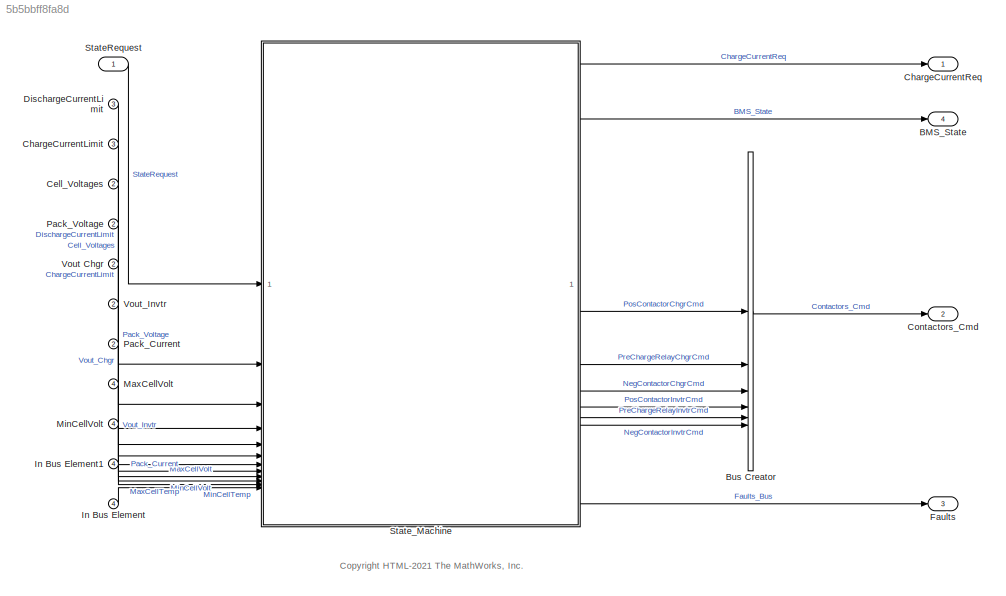
MODEL slx_5b5bbff8fa8d
KIND model
CONFIG AbsTol = auto
CONFIG EnableMultiTasking = off
CONFIG FixedStep = auto
CONFIG MaxStep = auto
CONFIG MinStep = auto
CONFIG PreLoadFcn = clearEnums;
CONFIG RelTol = 1e-3
CONFIG SampleTimeConstraint = Unconstrained
CONFIG SolverName = FixedStepDiscrete
CONFIG StartTime = 0.0
CONFIG StopTime = 10000
WORKSPACE source: mxarray member
WORKSPACE Active_Scenario_Index = 1
WORKSPACE BattTempInit = 25
WORKSPACE Battery: object (value not decoded)
WORKSPACE CV_Gain = 0.20000000298
WORKSPACE CellType = 1
WORKSPACE HighTempDchrgCurrentLim: Simulink.Signal (value not decoded)
WORKSPACE HighTempLimit = 50
WORKSPACE I_cc = 30
WORKSPACE LowTempDchrgCurrentLim: Simulink.Signal (value not decoded)
WORKSPACE LowTempLimit = 5
WORKSPACE MaxCellVoltThrsld = 4.19999980927
WORKSPACE MaxChrgCurrLim: Simulink.Parameter (value not decoded)
WORKSPACE MaxDchrgCurrLim: Simulink.Parameter (value not decoded)
WORKSPACE MinCellVoltDchrgCurrentLim: Simulink.Signal (value not decoded)
WORKSPACE MinCellVoltDchrgCurrentLimTable: Simulink.LookupTable (value not decoded)
WORKSPACE Np_Module = 31
WORKSPACE Ns_Module = 24
WORKSPACE NumModules = 4
WORKSPACE OverCellVoltageLimit = 4.19999980927
WORKSPACE Sig: Simulink.Signal (value not decoded)
WORKSPACE SnsrFltThld = 0.252
WORKSPACE TestCase = 1
WORKSPACE UnderCellVoltageLimit = 2.5
WORKSPACE contactorTime = 200
WORKSPACE currentFactor = 10
WORKSPACE noCurrent = 0
WORKSPACE timeoutContactor = 1
WORKSPACE timeoutCurrent = 1
WORKSPACE ts = 0.1
WORKSPACE vRatio = 0.949999988079
WORKSPACE voltThreshold = 4.09999990463
BLOCK [Outport] BMS_State
  OutDataTypeStr = Enum: BMS_State_Enum
  Port = 4
  PortDimensions = 1
  SampleTime = [0.10000000000000001,0]
  SamplingMode = Sample based
  SignalType = real
  VectorParamsAs1DForOutWhenUnconnected = off
BLOCK [BusCreator] Bus Creator
  DisplayOption = bar
  InheritFromInputs = off
  Inputs = 6
  NonVirtualBus = on
  OutDataTypeStr = Bus: Contactors_Cmd
BLOCK [Inport] Cell_Voltages
  Port = 2
BLOCK [Inport] ChargeCurrentLimit
  Port = 3
BLOCK [Outport] ChargeCurrentReq
  OutDataTypeStr = single
  OutMax = 100
  OutMin = -100
  PortDimensions = 1
  SampleTime = [0.10000000000000001,0]
  SamplingMode = Sample based
  SignalType = real
  VectorParamsAs1DForOutWhenUnconnected = off
BLOCK [Outport] Contactors_Cmd
  BusOutputAsStruct = on
  OutDataTypeStr = Bus: Contactors_Cmd
  Port = 2
BLOCK [Inport] DischargeCurrentLimit
  Port = 3
BLOCK [Outport] Faults
  BusOutputAsStruct = on
  OutDataTypeStr = Bus: Faults
  Port = 3
  VectorParamsAs1DForOutWhenUnconnected = off
BLOCK [Inport] In Bus Element
  Port = 4
BLOCK [Inport] In Bus Element1
  Port = 4
BLOCK [Inport] MaxCellVolt
  Port = 4
BLOCK [Inport] MinCellVolt
  Port = 4
BLOCK [Inport] Pack_Current
  Port = 2
BLOCK [Inport] Pack_Voltage
  Port = 2
BLOCK [Inport] StateRequest
  OutDataTypeStr = Enum: SRE
  PortDimensions = 1
  SampleTime = [0.10000000000000001,0]
  SamplingMode = Sample based
  SignalType = real
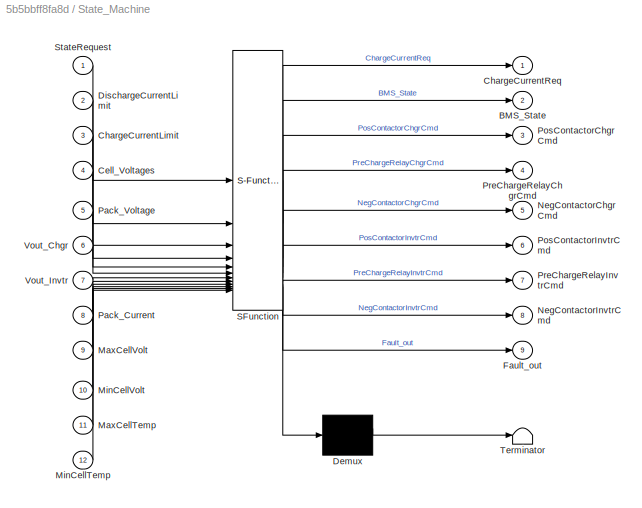
BLOCK [SubSystem] State_Machine
  ErrorFcn = Stateflow.Translate.translate
  PermitHierarchicalResolution = ExplicitOnly
  SFBlockType = Chart
  TreatAsAtomicUnit = on
  VariantControl = (default)
BLOCK [Demux] State_Machine/ Demux 
  Outputs = 1
BLOCK [S-Function] State_Machine/ SFunction 
  EnableBusSupport = off
  FunctionName = sf_sfun
  Parameters = CV_Gain,HighTempLimit,I_cc,LowTempLimit,MaxCellVoltThrsld,OverCellVoltageLimit,SnsrFltThld,UnderCellVoltageLimit,contactorTime,currentFactor,noCurrent,timeoutContactor,timeoutCurrent,vRatio,voltThreshold
  PortCounts = [12 10]
  SFcnIsStateOwnerBlock = off
  SFunctionDeploymentMode = off
  Tag = Stateflow S-Function 2
BLOCK [Terminator] State_Machine/ Terminator 
BLOCK [Outport] State_Machine/BMS_State
  Port = 2
  VectorParamsAs1DForOutWhenUnconnected = off
BLOCK [Inport] State_Machine/Cell_Voltages
  Port = 4
BLOCK [Inport] State_Machine/ChargeCurrentLimit
  Port = 3
BLOCK [Outport] State_Machine/ChargeCurrentReq
  VectorParamsAs1DForOutWhenUnconnected = off
BLOCK [Inport] State_Machine/DischargeCurrentLimit
  Port = 2
BLOCK [Outport] State_Machine/Fault_out
  Port = 9
  VectorParamsAs1DForOutWhenUnconnected = off
BLOCK [Inport] State_Machine/MaxCellTemp
  Port = 11
BLOCK [Inport] State_Machine/MaxCellVolt
  Port = 9
BLOCK [Inport] State_Machine/MinCellTemp
  Port = 12
BLOCK [Inport] State_Machine/MinCellVolt
  Port = 10
BLOCK [Outport] State_Machine/NegContactorChgrCmd
  Port = 5
  VectorParamsAs1DForOutWhenUnconnected = off
BLOCK [Outport] State_Machine/NegContactorInvtrCmd
  Port = 8
  VectorParamsAs1DForOutWhenUnconnected = off
BLOCK [Inport] State_Machine/Pack_Current
  Port = 8
BLOCK [Inport] State_Machine/Pack_Voltage
  Port = 5
BLOCK [Outport] State_Machine/PosContactorChgrCmd
  Port = 3
  VectorParamsAs1DForOutWhenUnconnected = off
BLOCK [Outport] State_Machine/PosContactorInvtrCmd
  Port = 6
  VectorParamsAs1DForOutWhenUnconnected = off
BLOCK [Outport] State_Machine/PreChargeRelayChgrCmd
  Port = 4
  VectorParamsAs1DForOutWhenUnconnected = off
BLOCK [Outport] State_Machine/PreChargeRelayInvtrCmd
  Port = 7
  VectorParamsAs1DForOutWhenUnconnected = off
BLOCK [Inport] State_Machine/StateRequest
BLOCK [Inport] State_Machine/Vout_Chgr
  Port = 6
BLOCK [Inport] State_Machine/Vout_Invtr
  Port = 7
BLOCK [Inport] Vout Chgr
  Port = 2
BLOCK [Inport] Vout_Invtr
  Port = 2
ANNOTATION (root): <copyright redacted>
LINE Bus Creator:1 -> Contactors_Cmd:1
LINE Cell_Voltages:1 -> State_Machine:4
LINE ChargeCurrentLimit:1 -> State_Machine:3
LINE DischargeCurrentLimit:1 -> State_Machine:2
LINE In Bus Element1:1 -> State_Machine:11
LINE In Bus Element:1 -> State_Machine:12
LINE MaxCellVolt:1 -> State_Machine:9
LINE MinCellVolt:1 -> State_Machine:10
LINE Pack_Current:1 -> State_Machine:8
LINE Pack_Voltage:1 -> State_Machine:5
LINE StateRequest:1 -> State_Machine:1
LINE State_Machine:1 -> ChargeCurrentReq:1
LINE State_Machine:2 -> BMS_State:1
LINE State_Machine:3 -> Bus Creator:1
LINE State_Machine:4 -> Bus Creator:2
LINE State_Machine:5 -> Bus Creator:3
LINE State_Machine:6 -> Bus Creator:4
LINE State_Machine:7 -> Bus Creator:5
LINE State_Machine:8 -> Bus Creator:6
LINE State_Machine:9 -> Faults:1
LINE Vout Chgr:1 -> State_Machine:6
LINE Vout_Invtr:1 -> State_Machine:7
CHART State_Machine states=46 transitions=56
  STATE_LABEL 'Fault Monitoring'
  STATE_LABEL 'MonitorCurrLim'
  STATE_LABEL 'Wait'
  STATE_LABEL 'NoCurrLimFault\n\n'
  STATE_LABEL 'OverCurrentFault\nen:\nFaultPresent = true;\nFault_out.OverCurrent=true;\n'
  STATE_LABEL '{FaultPresent = false;\nFault_out.OverCurrent=false;}'
  STATE_LABEL '[(Pack_Current < DischargeCurrentLimit) || ...\n(Pack_Current > ChargeCurrentLimit)]'
  STATE_LABEL '[(Pack_Current >= DischargeCurrentLimit) && ...\n(Pack_Current <= ChargeCurrentLimit)]'
  STATE_LABEL '[after(timeoutCurrent,sec)]'
  STATE_LABEL 'MonitorCellVoltage'
  STATE_LABEL 'OverVoltageFault\nen:\nFaultPresent = true;\nFault_out.OverVolt = true;'
  STATE_LABEL 'NoCellVoltFault\nen,du:\nDelta = abs(Pack_Voltage - sum(Cell_Voltages));\n'
  STATE_LABEL 'SensorFaut\nen:\nFaultPresent = true;\nFault_out.VoltSensor = true;'
  STATE_LABEL 'UnderVoltageFault\nen:\nFaultPresent = true;\nFault_out.UnderVolt = true;'
  STATE_LABEL '{FaultPresent = false;\nFault_out.OverVolt = false;\nFault_out.UnderVolt = false;\nFault_out.VoltSensor = false;\n}'
  STATE_LABEL '[MaxCellVolt >= ...\nOverCellVoltageLimit]'
  STATE_LABEL '[Delta >=...\n single(SnsrFltThld)]'
  STATE_LABEL '[MinCellVolt <=...\n UnderCellVoltageLimit]'
  STATE_LABEL 'MonitorCellTemp'
  STATE_LABEL 'HighTemperatureFault\nen:\nFaultPresent = true;\nFault_out.HighTemp = true;'
  STATE_LABEL 'NoCellTempFault\n'
  STATE_LABEL 'LowTemperatureFault\nen:\nFaultPresent = true;\nFault_out.LowTemp = true;'
  STATE_LABEL '{FaultPresent = false;\nFault_out.HighTemp = false;\nFault_out.LowTemp = false;}'
  STATE_LABEL '[MaxCellTemp >= HighTempLimit]'
  STATE_LABEL '[MinCellTemp <= LowTempLimit]'
  STATE_LABEL 'MonitorCurrLim'
  STATE_LABEL 'Wait'
  STATE_LABEL 'NoCurrLimFault\n\n'
  STATE_LABEL 'OverCurrentFault\nen:\nFaultPresent = true;\nFault_out.OverCurrent=true;\n'
  STATE_LABEL '{FaultPresent = false;\nFault_out.OverCurrent=false;}'
  STATE_LABEL '[(Pack_Current < DischargeCurrentLimit) || ...\n(Pack_Current > ChargeCurrentLimit)]'
  STATE_LABEL '[(Pack_Current >= DischargeCurrentLimit) && ...\n(Pack_Current <= ChargeCurrentLimit)]'
  STATE_LABEL '[after(timeoutCurrent,sec)]'
  STATE_LABEL 'Wait'
  STATE_LABEL 'NoCurrLimFault\n\n'
  STATE_LABEL 'OverCurrentFault\nen:\nFaultPresent = true;\nFault_out.OverCurrent=true;\n'
  STATE_LABEL 'MonitorCellVoltage'
  STATE_LABEL 'OverVoltageFault\nen:\nFaultPresent = true;\nFault_out.OverVolt = true;'
  STATE_LABEL 'NoCellVoltFault\nen,du:\nDelta = abs(Pack_Voltage - sum(Cell_Voltages));\n'
  STATE_LABEL 'SensorFaut\nen:\nFaultPresent = true;\nFault_out.VoltSensor = true;'
CHART  states=0 transitions=0
